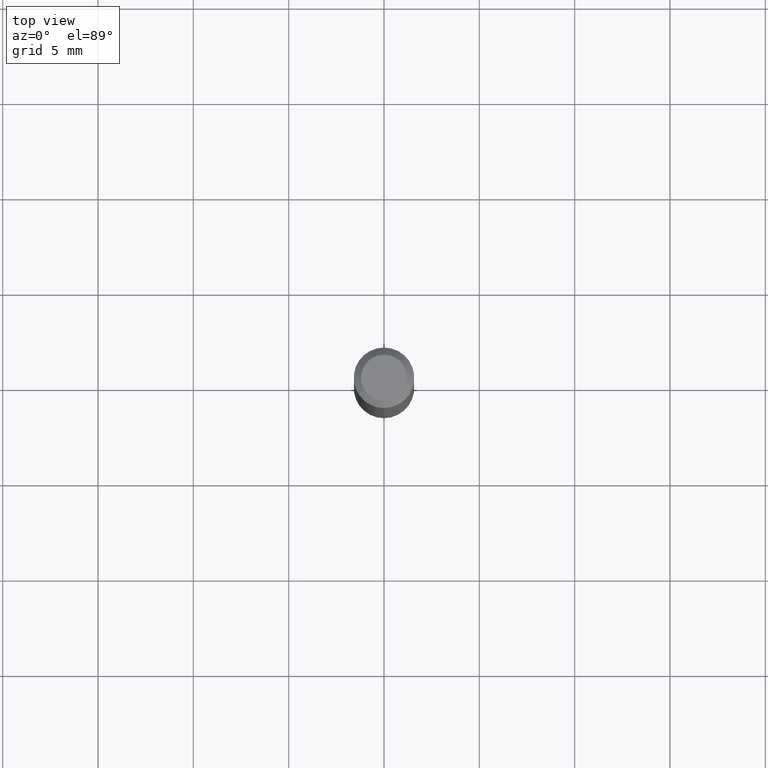
[diagram: clean part render]
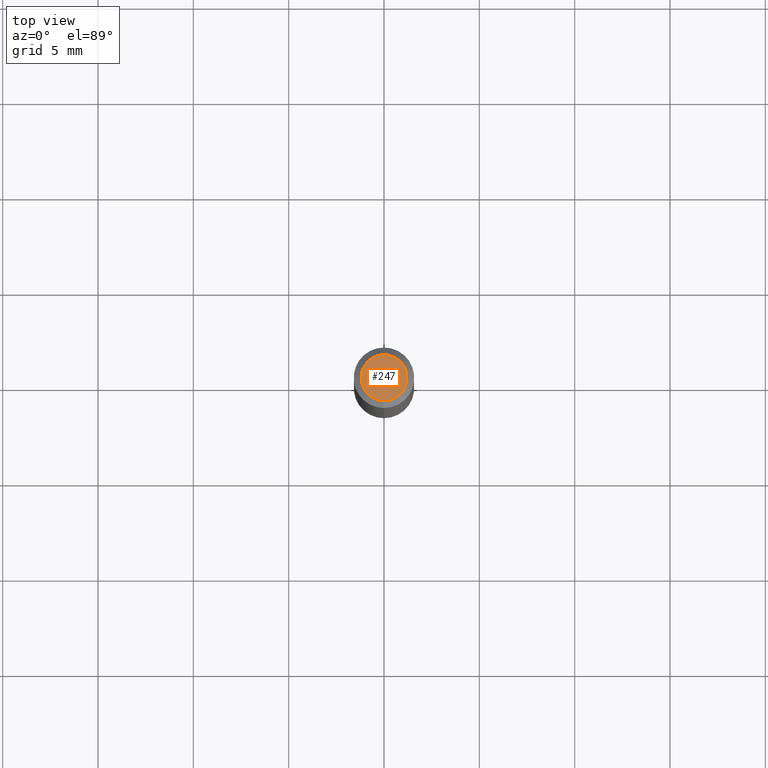
[diagram: same view with one face highlighted and labeled with its STEP entity id]
A machine part, top view. The second image highlights one B-rep face of the part: STEP entity #247.
In plain terms, the highlighted planar face has unit normal (0, -0, -1).
Its self-contained STEP definition (entity closure, byte-faithful):
#2 = CARTESIAN_POINT ( 'NONE',  ( -5.856608403494851464E-45, 8.361793705848945321E-31, 2.394897259381071493E-16 ) ) ;
#16 = ORIENTED_EDGE ( 'NONE', *, *, #190, .T. ) ;
#36 = VERTEX_POINT ( 'NONE', #272 ) ;
#89 = DIRECTION ( 'NONE',  ( -2.445452881351750103E-29, 3.491504144110940427E-15, 1.000000000000000000 ) ) ;
#120 = DIRECTION ( 'NONE',  ( 6.982962677686265922E-15, 1.000000000000000000, -3.491504144110940427E-15 ) ) ;
#133 = DIRECTION ( 'NONE',  ( -2.445452881351750103E-29, 3.491504144110940427E-15, 1.000000000000000000 ) ) ;
#138 = DIRECTION ( 'NONE',  ( -6.982962677686266711E-15, -1.000000000000000000, 3.491504144110940033E-15 ) ) ;
#180 = AXIS2_PLACEMENT_3D ( 'NONE', #489, #133, #138 ) ;
#190 = EDGE_CURVE ( 'NONE', #199, #36, #306, .T. ) ;
#199 = VERTEX_POINT ( 'NONE', #324 ) ;
#246 = PLANE ( 'NONE',  #319 ) ;
#247 = ADVANCED_FACE ( 'NONE', ( #277 ), #246, .F. ) ;
#263 = CIRCLE ( 'NONE', #180, 0.04749999999999999362 ) ;
#272 = CARTESIAN_POINT ( 'NONE',  ( -3.773273898774340269E-16, -0.04749999999999999362, 4.053361727833767782E-16 ) ) ;
#277 = FACE_OUTER_BOUND ( 'NONE', #479, .T. ) ;
#306 = CIRCLE ( 'NONE', #351, 0.04749999999999999362 ) ;
#319 = AXIS2_PLACEMENT_3D ( 'NONE', #396, #470, #120 ) ;
#323 = ORIENTED_EDGE ( 'NONE', *, *, #452, .T. ) ;
#324 = CARTESIAN_POINT ( 'NONE',  ( 3.840629472727447874E-16, 0.04749999999999999362, 7.364327909283752044E-17 ) ) ;
#351 = AXIS2_PLACEMENT_3D ( 'NONE', #2, #89, #439 ) ;
#396 = CARTESIAN_POINT ( 'NONE',  ( 3.316907271900976096E-16, 0.04749999999999999362, -4.610158387621606654E-17 ) ) ;
#439 = DIRECTION ( 'NONE',  ( -6.982962677686266711E-15, -1.000000000000000000, 3.491504144110940033E-15 ) ) ;
#452 = EDGE_CURVE ( 'NONE', #36, #199, #263, .T. ) ;
#470 = DIRECTION ( 'NONE',  ( 2.445452881351749543E-29, -3.491504144110940427E-15, -1.000000000000000000 ) ) ;
#479 = EDGE_LOOP ( 'NONE', ( #16, #323 ) ) ;
#489 = CARTESIAN_POINT ( 'NONE',  ( -5.856608403494851464E-45, 8.361793705848945321E-31, 2.394897259381071493E-16 ) ) ;